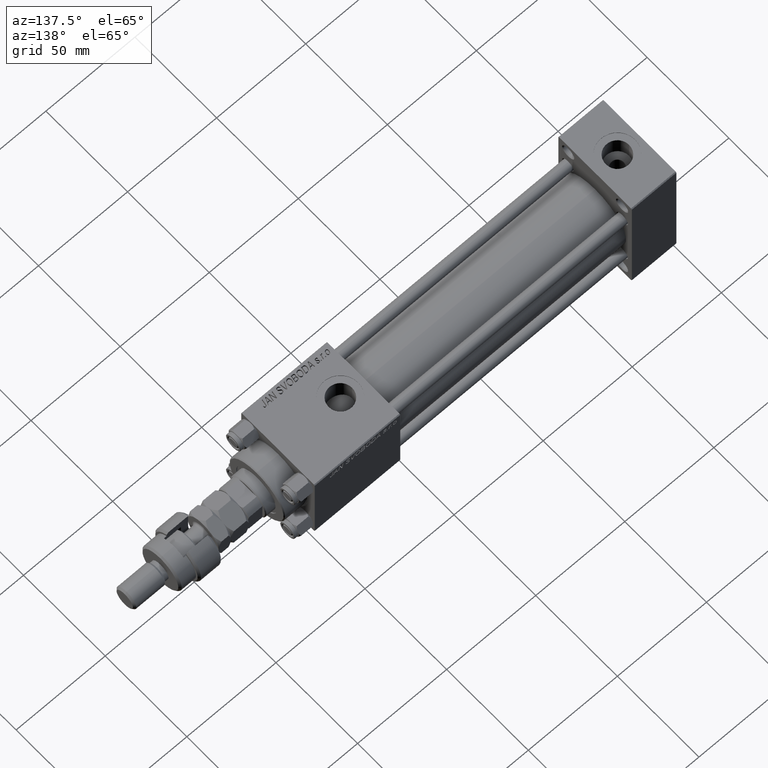
[diagram: clean part render]
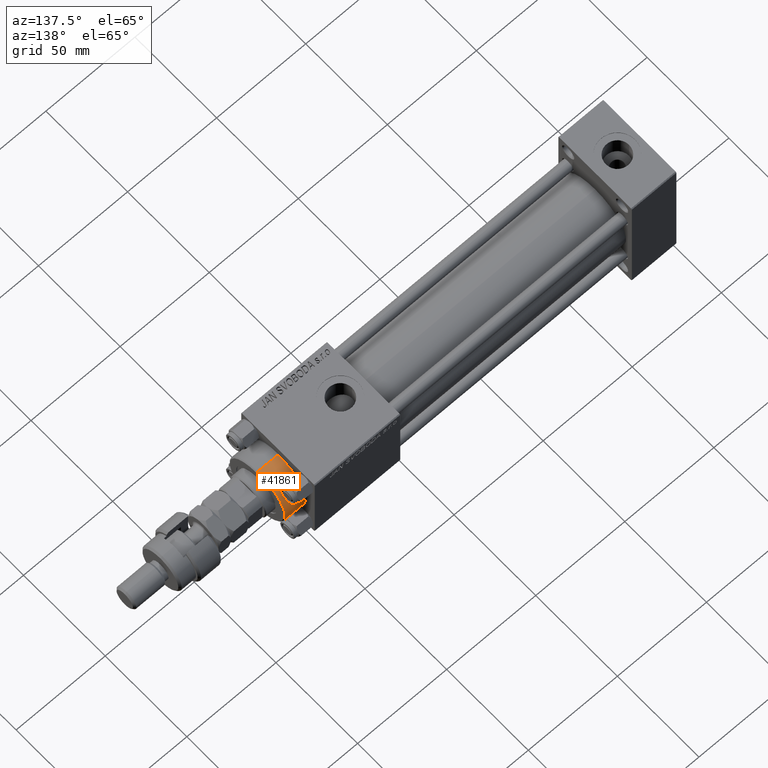
[diagram: same view with one face highlighted and labeled with its STEP entity id]
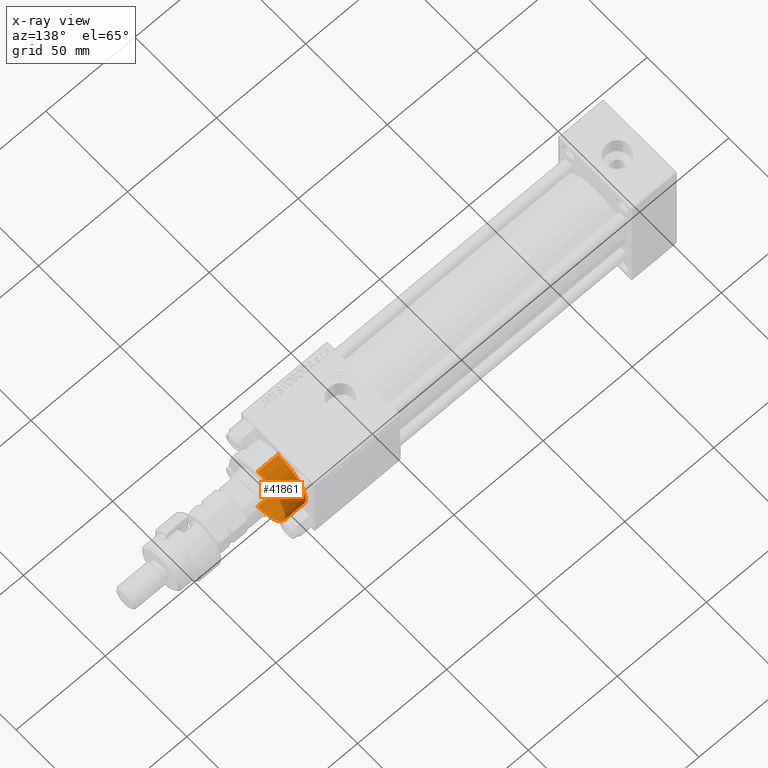
[diagram: x-ray of the same camera — body ghosted, the highlighted face saturated]
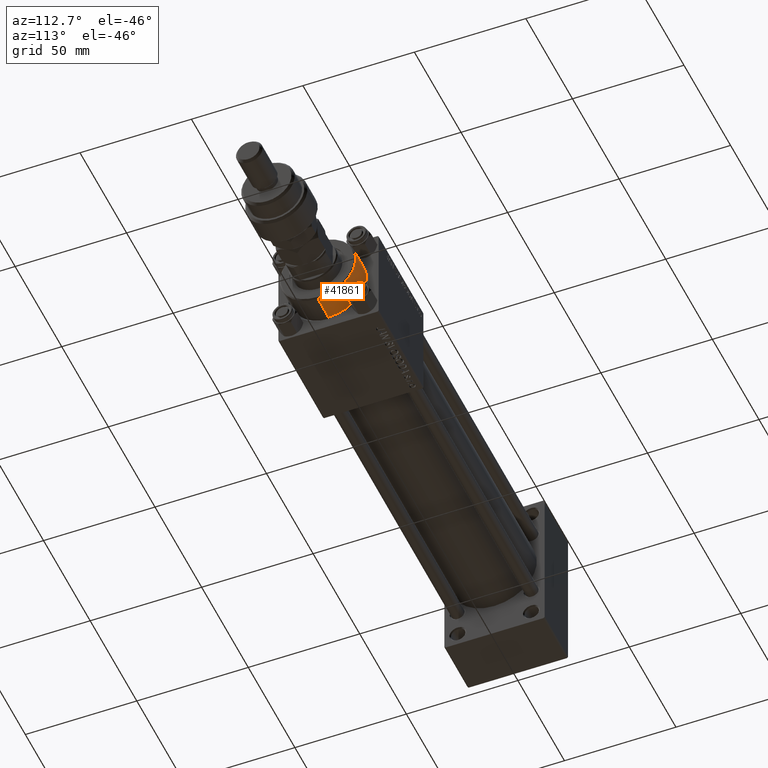
[diagram: same view with one face highlighted and labeled with its STEP entity id]
A machine part, auxiliary view. The second image highlights one B-rep face of the part: STEP entity #41861.
The next image is the same camera in x-ray: the body ghosted, the highlighted face saturated — about 0% of this face is hidden behind the body in this view.
A second angle (auxiliary view) of the same face is appended — the face is thin or edge-on in the first view.
In plain terms, the highlighted cylindrical surface (partial cylindrical patch) has radius 17 mm, axis along (-1, -0, 0).
Its self-contained STEP definition (entity closure, byte-faithful):
#1610 = CARTESIAN_POINT ( 'NONE',  ( 0.000000000000000000, 0.000000000000000000, 40.70000000000000284 ) ) ;
#3255 = ORIENTED_EDGE ( 'NONE', *, *, #19509, .T. ) ;
#3675 = VERTEX_POINT ( 'NONE', #52743 ) ;
#5100 = CARTESIAN_POINT ( 'NONE',  ( 0.000000000000000000, 0.000000000000000000, 40.19999999999999574 ) ) ;
#5619 = CYLINDRICAL_SURFACE ( 'NONE', #46387, 17.00000000000000000 ) ;
#6602 = DIRECTION ( 'NONE',  ( -0.000000000000000000, -0.000000000000000000, -1.000000000000000000 ) ) ;
#6897 = EDGE_CURVE ( 'NONE', #35702, #27866, #31533, .T. ) ;
#7254 = CIRCLE ( 'NONE', #21742, 17.00000000000000000 ) ;
#7375 = EDGE_LOOP ( 'NONE', ( #21594, #38743, #3255, #12844 ) ) ;
#7924 = VERTEX_POINT ( 'NONE', #32244 ) ;
#11564 = CARTESIAN_POINT ( 'NONE',  ( 17.00000000000000000, 2.081899558550500280E-15, 40.19999999999999574 ) ) ;
#11611 = DIRECTION ( 'NONE',  ( 0.000000000000000000, 0.000000000000000000, 1.000000000000000000 ) ) ;
#11761 = DIRECTION ( 'NONE',  ( -0.000000000000000000, -0.000000000000000000, -1.000000000000000000 ) ) ;
#12844 = ORIENTED_EDGE ( 'NONE', *, *, #23395, .F. ) ;
#13882 = FACE_OUTER_BOUND ( 'NONE', #7375, .T. ) ;
#14250 = LINE ( 'NONE', #42555, #26726 ) ;
#14416 = DIRECTION ( 'NONE',  ( 0.000000000000000000, 0.000000000000000000, -1.000000000000000000 ) ) ;
#19509 = EDGE_CURVE ( 'NONE', #27866, #3675, #51288, .T. ) ;
#21594 = ORIENTED_EDGE ( 'NONE', *, *, #43119, .T. ) ;
#21742 = AXIS2_PLACEMENT_3D ( 'NONE', #5100, #14416, #37945 ) ;
#22886 = DIRECTION ( 'NONE',  ( -1.000000000000000000, 0.000000000000000000, 0.000000000000000000 ) ) ;
#22990 = CARTESIAN_POINT ( 'NONE',  ( 17.00000000000000000, 2.081899558550500280E-15, 40.70000000000000284 ) ) ;
#23395 = EDGE_CURVE ( 'NONE', #7924, #3675, #14250, .T. ) ;
#26726 = VECTOR ( 'NONE', #34827, 1000.000000000000000 ) ;
#27866 = VERTEX_POINT ( 'NONE', #50951 ) ;
#27899 = DIRECTION ( 'NONE',  ( 1.000000000000000000, 0.000000000000000000, 0.000000000000000000 ) ) ;
#31533 = LINE ( 'NONE', #22990, #44102 ) ;
#31723 = AXIS2_PLACEMENT_3D ( 'NONE', #48170, #11611, #27899 ) ;
#32244 = CARTESIAN_POINT ( 'NONE',  ( -17.00000000000000000, 0.000000000000000000, 40.19999999999999574 ) ) ;
#34827 = DIRECTION ( 'NONE',  ( -0.000000000000000000, -0.000000000000000000, -1.000000000000000000 ) ) ;
#35702 = VERTEX_POINT ( 'NONE', #11564 ) ;
#37945 = DIRECTION ( 'NONE',  ( 1.000000000000000000, 0.000000000000000000, 0.000000000000000000 ) ) ;
#38743 = ORIENTED_EDGE ( 'NONE', *, *, #6897, .T. ) ;
#41861 = ADVANCED_FACE ( 'NONE', ( #13882 ), #5619, .T. ) ;
#42555 = CARTESIAN_POINT ( 'NONE',  ( -17.00000000000000000, 0.000000000000000000, 40.70000000000000284 ) ) ;
#43119 = EDGE_CURVE ( 'NONE', #7924, #35702, #7254, .T. ) ;
#44102 = VECTOR ( 'NONE', #11761, 1000.000000000000000 ) ;
#46387 = AXIS2_PLACEMENT_3D ( 'NONE', #1610, #6602, #22886 ) ;
#48170 = CARTESIAN_POINT ( 'NONE',  ( 0.000000000000000000, 0.000000000000000000, 28.69999999999999929 ) ) ;
#50951 = CARTESIAN_POINT ( 'NONE',  ( 17.00000000000000000, 2.081899558550500280E-15, 28.69999999999999929 ) ) ;
#51288 = CIRCLE ( 'NONE', #31723, 17.00000000000000000 ) ;
#52743 = CARTESIAN_POINT ( 'NONE',  ( -17.00000000000000000, 0.000000000000000000, 28.69999999999999929 ) ) ;